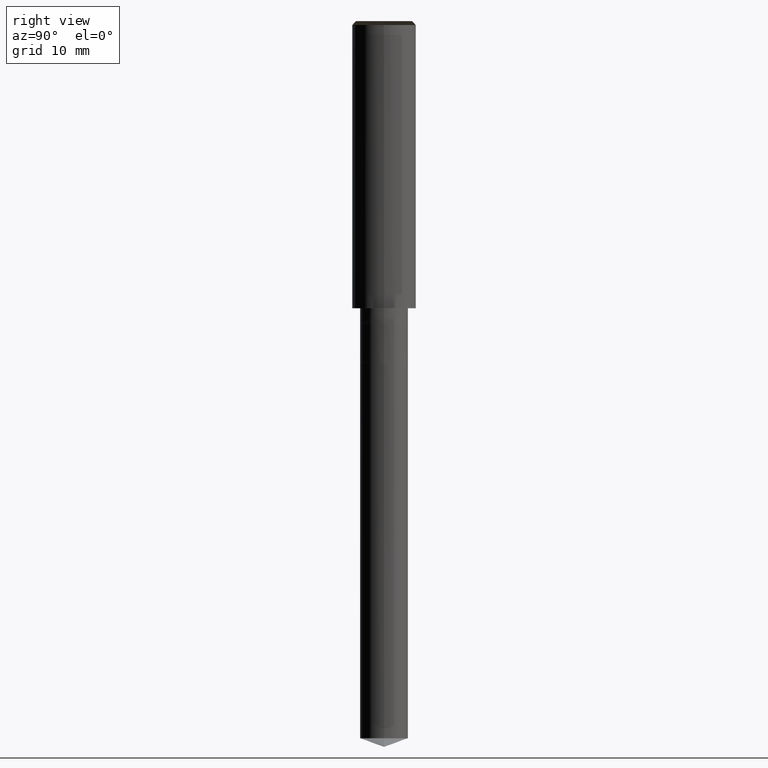
[diagram: clean part render]
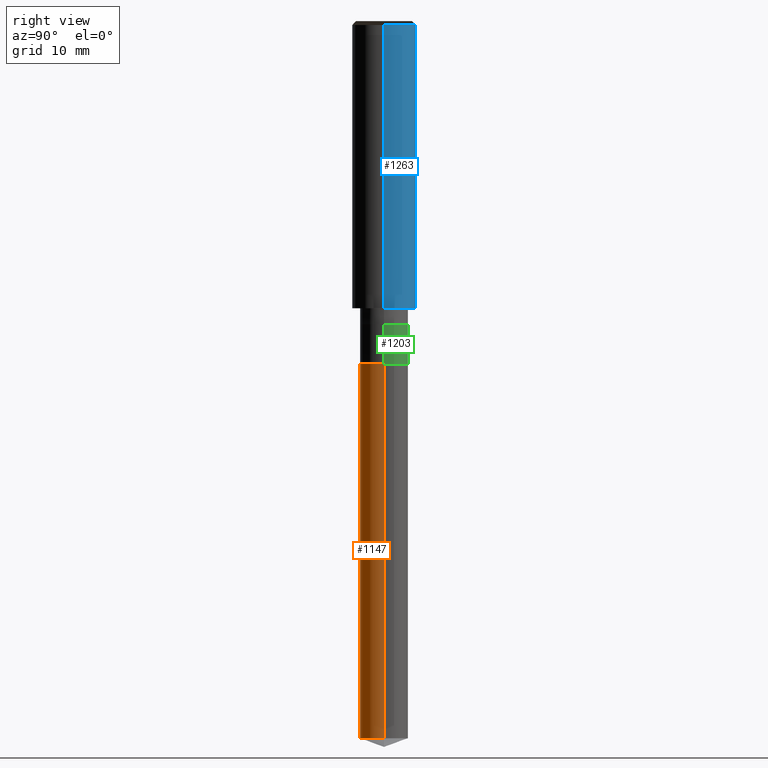
[diagram: same view with three faces highlighted in distinct colors, each labeled with its STEP entity id]
A machine part, right view with three faces highlighted in distinct colors.
Their STEP definitions:

[orange] entity #1147 — the highlighted face is a freeform B-spline surface patch.
#997=CARTESIAN_POINT('',(3.0,0.0,-53.908089297201));
#1001=CARTESIAN_POINT('',(-3.0,0.0,-53.908089297201));
#1002=CARTESIAN_POINT('',(3.0,0.0,-7.0));
#1006=CARTESIAN_POINT('',(-3.0,0.0,-7.0));
#1008=CARTESIAN_POINT('',(-3.0,-3.0,-53.908089297201));
#1009=CARTESIAN_POINT('',(0.0,-3.0,-53.908089297201));
#1010=CARTESIAN_POINT('',(3.0,-3.0,-53.908089297201));
#1011=CARTESIAN_POINT('',(-3.0,-3.0,-7.0));
#1012=CARTESIAN_POINT('',(0.0,-3.0,-7.0));
#1013=CARTESIAN_POINT('',(3.0,-3.0,-7.0));
#1128=(
BOUNDED_SURFACE()
B_SPLINE_SURFACE(1,2,(
(#1001,#1008,#1009,#1010,#997),
(#1006,#1011,#1012,#1013,#1002)
), .UNSPECIFIED.,.F.,.F.,.F.)
B_SPLINE_SURFACE_WITH_KNOTS((2,2),(3,2,3),(
0.0,1.0),(
0.0,0.5,1.0), .UNSPECIFIED.)
GEOMETRIC_REPRESENTATION_ITEM()
RATIONAL_B_SPLINE_SURFACE(((1.0,0.707106781187,1.0,0.707106781187,1.0),
(1.0,0.707106781187,1.0,0.707106781187,1.0)
))
REPRESENTATION_ITEM('')
SURFACE()
);
#1129=(
BOUNDED_CURVE()
B_SPLINE_CURVE(2,(#997,#1010,#1009,#1008,#1001),.UNSPECIFIED.,.F.,.F.)
B_SPLINE_CURVE_WITH_KNOTS((3,2,3),
(0.0,0.5,1.0),.UNSPECIFIED.)
CURVE()
GEOMETRIC_REPRESENTATION_ITEM()
RATIONAL_B_SPLINE_CURVE((1.0,0.707106781187,1.0,0.707106781187,1.0))
REPRESENTATION_ITEM('')
);
#1130=(
BOUNDED_CURVE()
B_SPLINE_CURVE(1,(#1001,#1006),.UNSPECIFIED.,.F.,.F.)
B_SPLINE_CURVE_WITH_KNOTS((2,2),
(0.0,1.0),.UNSPECIFIED.)
CURVE()
GEOMETRIC_REPRESENTATION_ITEM()
RATIONAL_B_SPLINE_CURVE((1.0,1.0))
REPRESENTATION_ITEM('')
);
#1131=(
BOUNDED_CURVE()
B_SPLINE_CURVE(2,(#1006,#1011,#1012,#1013,#1002),.UNSPECIFIED.,.F.,.F.)
B_SPLINE_CURVE_WITH_KNOTS((3,2,3),
(0.0,0.5,1.0),.UNSPECIFIED.)
CURVE()
GEOMETRIC_REPRESENTATION_ITEM()
RATIONAL_B_SPLINE_CURVE((1.0,0.707106781187,1.0,0.707106781187,1.0))
REPRESENTATION_ITEM('')
);
#1132=(
BOUNDED_CURVE()
B_SPLINE_CURVE(1,(#1002,#997),.UNSPECIFIED.,.F.,.F.)
B_SPLINE_CURVE_WITH_KNOTS((2,2),
(0.0,1.0),.UNSPECIFIED.)
CURVE()
GEOMETRIC_REPRESENTATION_ITEM()
RATIONAL_B_SPLINE_CURVE((1.0,1.0))
REPRESENTATION_ITEM('')
);
#1133=VERTEX_POINT('',#997);
#1134=VERTEX_POINT('',#1001);
#1135=VERTEX_POINT('',#1002);
#1136=VERTEX_POINT('',#1006);
#1137=EDGE_CURVE('',#1133,#1134,#1129,.T.);
#1138=EDGE_CURVE('',#1134,#1136,#1130,.T.);
#1139=EDGE_CURVE('',#1136,#1135,#1131,.T.);
#1140=EDGE_CURVE('',#1135,#1133,#1132,.T.);
#1141=ORIENTED_EDGE('',*,*,#1137,.T.);
#1142=ORIENTED_EDGE('',*,*,#1138,.T.);
#1143=ORIENTED_EDGE('',*,*,#1139,.T.);
#1144=ORIENTED_EDGE('',*,*,#1140,.T.);
#1145=EDGE_LOOP('',(#1141,#1142,#1143,#1144));
#1146=FACE_OUTER_BOUND('',#1145,.T.);
#1147=ADVANCED_FACE('',(#1146),#1128,.T.);

[blue] entity #1263 — the highlighted face is a freeform B-spline surface patch.
#1024=CARTESIAN_POINT('',(4.0,0.0,0.0));
#1025=CARTESIAN_POINT('',(4.0,4.0,0.0));
#1026=CARTESIAN_POINT('',(0.0,4.0,0.0));
#1027=CARTESIAN_POINT('',(-4.0,4.0,0.0));
#1028=CARTESIAN_POINT('',(-4.0,0.0,0.0));
#1029=CARTESIAN_POINT('',(4.0,0.0,35.5));
#1030=CARTESIAN_POINT('',(4.0,4.0,35.5));
#1031=CARTESIAN_POINT('',(0.0,4.0,35.5));
#1032=CARTESIAN_POINT('',(-4.0,4.0,35.5));
#1033=CARTESIAN_POINT('',(-4.0,0.0,35.5));
#1244=(
BOUNDED_SURFACE()
B_SPLINE_SURFACE(1,2,(
(#1024,#1025,#1026,#1027,#1028),
(#1029,#1030,#1031,#1032,#1033)
), .UNSPECIFIED.,.F.,.F.,.F.)
B_SPLINE_SURFACE_WITH_KNOTS((2,2),(3,2,3),(
0.0,1.0),(
0.0,0.5,1.0), .UNSPECIFIED.)
GEOMETRIC_REPRESENTATION_ITEM()
RATIONAL_B_SPLINE_SURFACE(((1.0,0.707106781187,1.0,0.707106781187,1.0),
(1.0,0.707106781187,1.0,0.707106781187,1.0)
))
REPRESENTATION_ITEM('')
SURFACE()
);
#1245=(
BOUNDED_CURVE()
B_SPLINE_CURVE(2,(#1028,#1027,#1026,#1025,#1024),.UNSPECIFIED.,.F.,.F.)
B_SPLINE_CURVE_WITH_KNOTS((3,2,3),
(0.0,0.5,1.0),.UNSPECIFIED.)
CURVE()
GEOMETRIC_REPRESENTATION_ITEM()
RATIONAL_B_SPLINE_CURVE((1.0,0.707106781187,1.0,0.707106781187,1.0))
REPRESENTATION_ITEM('')
);
#1246=(
BOUNDED_CURVE()
B_SPLINE_CURVE(1,(#1024,#1029),.UNSPECIFIED.,.F.,.F.)
B_SPLINE_CURVE_WITH_KNOTS((2,2),
(0.0,1.0),.UNSPECIFIED.)
CURVE()
GEOMETRIC_REPRESENTATION_ITEM()
RATIONAL_B_SPLINE_CURVE((1.0,1.0))
REPRESENTATION_ITEM('')
);
#1247=(
BOUNDED_CURVE()
B_SPLINE_CURVE(2,(#1029,#1030,#1031,#1032,#1033),.UNSPECIFIED.,.F.,.F.)
B_SPLINE_CURVE_WITH_KNOTS((3,2,3),
(0.0,0.5,1.0),.UNSPECIFIED.)
CURVE()
GEOMETRIC_REPRESENTATION_ITEM()
RATIONAL_B_SPLINE_CURVE((1.0,0.707106781187,1.0,0.707106781187,1.0))
REPRESENTATION_ITEM('')
);
#1248=(
BOUNDED_CURVE()
B_SPLINE_CURVE(1,(#1033,#1028),.UNSPECIFIED.,.F.,.F.)
B_SPLINE_CURVE_WITH_KNOTS((2,2),
(0.0,1.0),.UNSPECIFIED.)
CURVE()
GEOMETRIC_REPRESENTATION_ITEM()
RATIONAL_B_SPLINE_CURVE((1.0,1.0))
REPRESENTATION_ITEM('')
);
#1249=VERTEX_POINT('',#1024);
#1250=VERTEX_POINT('',#1028);
#1251=VERTEX_POINT('',#1029);
#1252=VERTEX_POINT('',#1033);
#1253=EDGE_CURVE('',#1250,#1249,#1245,.T.);
#1254=EDGE_CURVE('',#1249,#1251,#1246,.T.);
#1255=EDGE_CURVE('',#1251,#1252,#1247,.T.);
#1256=EDGE_CURVE('',#1252,#1250,#1248,.T.);
#1257=ORIENTED_EDGE('',*,*,#1253,.T.);
#1258=ORIENTED_EDGE('',*,*,#1254,.T.);
#1259=ORIENTED_EDGE('',*,*,#1255,.T.);
#1260=ORIENTED_EDGE('',*,*,#1256,.T.);
#1261=EDGE_LOOP('',(#1257,#1258,#1259,#1260));
#1262=FACE_OUTER_BOUND('',#1261,.T.);
#1263=ADVANCED_FACE('',(#1262),#1244,.T.);

[green] entity #1203 — the highlighted face is a freeform B-spline surface patch.
#1002=CARTESIAN_POINT('',(3.0,0.0,-7.0));
#1003=CARTESIAN_POINT('',(3.0,3.0,-7.0));
#1004=CARTESIAN_POINT('',(0.0,3.0,-7.0));
#1005=CARTESIAN_POINT('',(-3.0,3.0,-7.0));
#1006=CARTESIAN_POINT('',(-3.0,0.0,-7.0));
#1014=CARTESIAN_POINT('',(3.0,0.0,-2.0));
#1015=CARTESIAN_POINT('',(3.0,3.0,-2.0));
#1016=CARTESIAN_POINT('',(0.0,3.0,-2.0));
#1017=CARTESIAN_POINT('',(-3.0,3.0,-2.0));
#1018=CARTESIAN_POINT('',(-3.0,0.0,-2.0));
#1184=(
BOUNDED_SURFACE()
B_SPLINE_SURFACE(1,2,(
(#1002,#1003,#1004,#1005,#1006),
(#1014,#1015,#1016,#1017,#1018)
), .UNSPECIFIED.,.F.,.F.,.F.)
B_SPLINE_SURFACE_WITH_KNOTS((2,2),(3,2,3),(
0.0,1.0),(
0.0,0.5,1.0), .UNSPECIFIED.)
GEOMETRIC_REPRESENTATION_ITEM()
RATIONAL_B_SPLINE_SURFACE(((1.0,0.707106781187,1.0,0.707106781187,1.0),
(1.0,0.707106781187,1.0,0.707106781187,1.0)
))
REPRESENTATION_ITEM('')
SURFACE()
);
#1185=(
BOUNDED_CURVE()
B_SPLINE_CURVE(2,(#1006,#1005,#1004,#1003,#1002),.UNSPECIFIED.,.F.,.F.)
B_SPLINE_CURVE_WITH_KNOTS((3,2,3),
(0.0,0.5,1.0),.UNSPECIFIED.)
CURVE()
GEOMETRIC_REPRESENTATION_ITEM()
RATIONAL_B_SPLINE_CURVE((1.0,0.707106781187,1.0,0.707106781187,1.0))
REPRESENTATION_ITEM('')
);
#1186=(
BOUNDED_CURVE()
B_SPLINE_CURVE(1,(#1002,#1014),.UNSPECIFIED.,.F.,.F.)
B_SPLINE_CURVE_WITH_KNOTS((2,2),
(0.0,1.0),.UNSPECIFIED.)
CURVE()
GEOMETRIC_REPRESENTATION_ITEM()
RATIONAL_B_SPLINE_CURVE((1.0,1.0))
REPRESENTATION_ITEM('')
);
#1187=(
BOUNDED_CURVE()
B_SPLINE_CURVE(2,(#1014,#1015,#1016,#1017,#1018),.UNSPECIFIED.,.F.,.F.)
B_SPLINE_CURVE_WITH_KNOTS((3,2,3),
(0.0,0.5,1.0),.UNSPECIFIED.)
CURVE()
GEOMETRIC_REPRESENTATION_ITEM()
RATIONAL_B_SPLINE_CURVE((1.0,0.707106781187,1.0,0.707106781187,1.0))
REPRESENTATION_ITEM('')
);
#1188=(
BOUNDED_CURVE()
B_SPLINE_CURVE(1,(#1018,#1006),.UNSPECIFIED.,.F.,.F.)
B_SPLINE_CURVE_WITH_KNOTS((2,2),
(0.0,1.0),.UNSPECIFIED.)
CURVE()
GEOMETRIC_REPRESENTATION_ITEM()
RATIONAL_B_SPLINE_CURVE((1.0,1.0))
REPRESENTATION_ITEM('')
);
#1189=VERTEX_POINT('',#1002);
#1190=VERTEX_POINT('',#1006);
#1191=VERTEX_POINT('',#1014);
#1192=VERTEX_POINT('',#1018);
#1193=EDGE_CURVE('',#1190,#1189,#1185,.T.);
#1194=EDGE_CURVE('',#1189,#1191,#1186,.T.);
#1195=EDGE_CURVE('',#1191,#1192,#1187,.T.);
#1196=EDGE_CURVE('',#1192,#1190,#1188,.T.);
#1197=ORIENTED_EDGE('',*,*,#1193,.T.);
#1198=ORIENTED_EDGE('',*,*,#1194,.T.);
#1199=ORIENTED_EDGE('',*,*,#1195,.T.);
#1200=ORIENTED_EDGE('',*,*,#1196,.T.);
#1201=EDGE_LOOP('',(#1197,#1198,#1199,#1200));
#1202=FACE_OUTER_BOUND('',#1201,.T.);
#1203=ADVANCED_FACE('',(#1202),#1184,.T.);